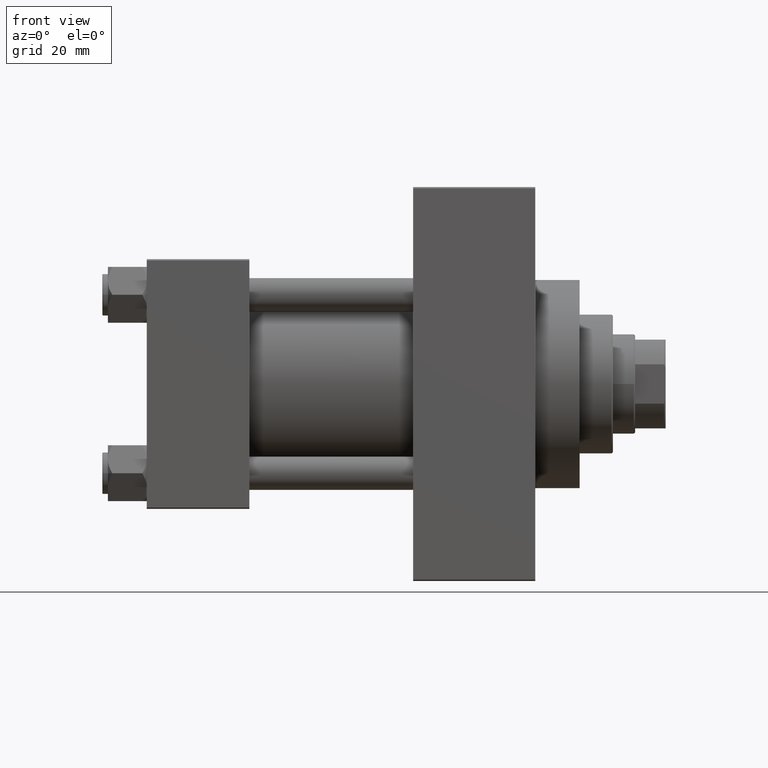
[diagram: clean part render]
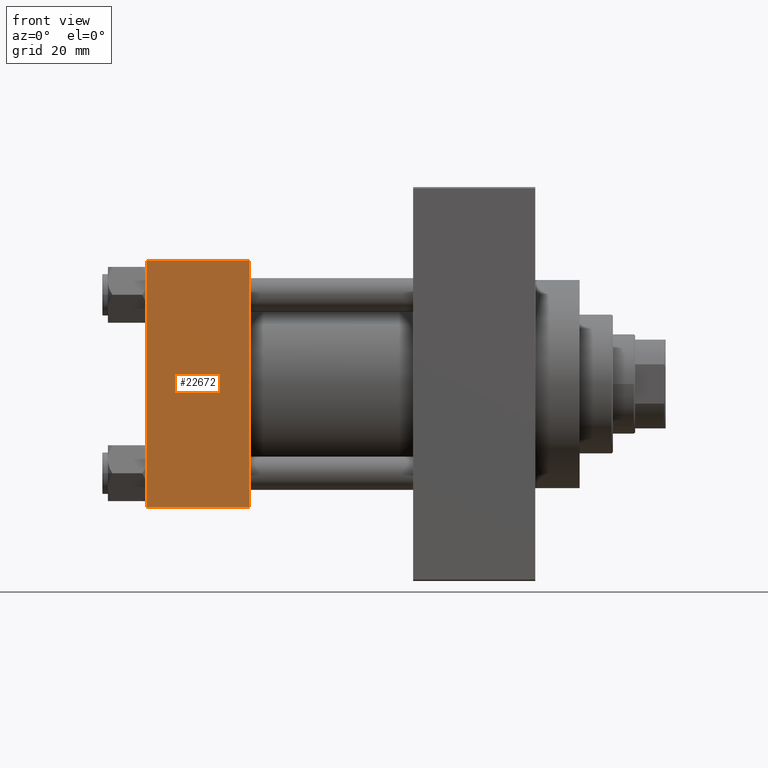
[diagram: same view with one face highlighted and labeled with its STEP entity id]
A machine part, front view. The second image highlights one B-rep face of the part: STEP entity #22672.
In plain terms, the highlighted planar face has unit normal (0, 1, 0).
Its self-contained STEP definition (entity closure, byte-faithful):
#4024 = VECTOR ( 'NONE', #41021, 1000.000000000000000 ) ;
#5343 = EDGE_CURVE ( 'NONE', #29326, #42338, #44608, .T. ) ;
#5544 = PLANE ( 'NONE',  #7960 ) ;
#5829 = VERTEX_POINT ( 'NONE', #13422 ) ;
#7960 = AXIS2_PLACEMENT_3D ( 'NONE', #13407, #13881, #42773 ) ;
#8335 = VECTOR ( 'NONE', #45162, 1000.000000000000000 ) ;
#9335 = CARTESIAN_POINT ( 'NONE',  ( 0.000000000000000000, -45.00000000000000711, 44.49999999999997158 ) ) ;
#12410 = CARTESIAN_POINT ( 'NONE',  ( 37.00000000000000000, -45.00000000000000000, -44.49999999999995737 ) ) ;
#12449 = CARTESIAN_POINT ( 'NONE',  ( 37.00000000000000000, -45.00000000000000000, -44.49999999999998579 ) ) ;
#13284 = CARTESIAN_POINT ( 'NONE',  ( 37.00000000000000000, -45.00000000000000711, 45.00000000000000000 ) ) ;
#13407 = CARTESIAN_POINT ( 'NONE',  ( 37.00000000000000000, -45.00000000000000711, 45.00000000000000000 ) ) ;
#13422 = CARTESIAN_POINT ( 'NONE',  ( 37.00000000000000000, -45.00000000000000711, 44.49999999999997158 ) ) ;
#13881 = DIRECTION ( 'NONE',  ( -0.000000000000000000, 1.000000000000000000, 7.709882115452478166E-17 ) ) ;
#14974 = VECTOR ( 'NONE', #27867, 1000.000000000000000 ) ;
#19659 = EDGE_CURVE ( 'NONE', #5829, #38549, #35257, .T. ) ;
#22672 = ADVANCED_FACE ( 'NONE', ( #35612 ), #5544, .F. ) ;
#23443 = LINE ( 'NONE', #12449, #8335 ) ;
#23756 = LINE ( 'NONE', #31395, #41184 ) ;
#26483 = CARTESIAN_POINT ( 'NONE',  ( 0.000000000000000000, -45.00000000000000711, 45.00000000000000000 ) ) ;
#27867 = DIRECTION ( 'NONE',  ( 0.000000000000000000, 7.709882115452476934E-17, -1.000000000000000000 ) ) ;
#29326 = VERTEX_POINT ( 'NONE', #9335 ) ;
#30879 = ORIENTED_EDGE ( 'NONE', *, *, #19659, .F. ) ;
#31395 = CARTESIAN_POINT ( 'NONE',  ( 37.00000000000000000, -45.00000000000000711, 44.49999999999997158 ) ) ;
#32614 = CARTESIAN_POINT ( 'NONE',  ( 0.000000000000000000, -45.00000000000000000, -44.49999999999995737 ) ) ;
#33505 = ORIENTED_EDGE ( 'NONE', *, *, #5343, .T. ) ;
#35257 = LINE ( 'NONE', #13284, #14974 ) ;
#35612 = FACE_OUTER_BOUND ( 'NONE', #35795, .T. ) ;
#35795 = EDGE_LOOP ( 'NONE', ( #33505, #42890, #30879, #37793 ) ) ;
#37782 = EDGE_CURVE ( 'NONE', #42338, #38549, #23443, .T. ) ;
#37793 = ORIENTED_EDGE ( 'NONE', *, *, #39992, .T. ) ;
#38549 = VERTEX_POINT ( 'NONE', #12410 ) ;
#39992 = EDGE_CURVE ( 'NONE', #5829, #29326, #23756, .T. ) ;
#41021 = DIRECTION ( 'NONE',  ( 0.000000000000000000, 7.709882115452476934E-17, -1.000000000000000000 ) ) ;
#41184 = VECTOR ( 'NONE', #45704, 1000.000000000000000 ) ;
#42338 = VERTEX_POINT ( 'NONE', #32614 ) ;
#42773 = DIRECTION ( 'NONE',  ( 0.000000000000000000, -7.709882115452478166E-17, 1.000000000000000000 ) ) ;
#42890 = ORIENTED_EDGE ( 'NONE', *, *, #37782, .T. ) ;
#44608 = LINE ( 'NONE', #26483, #4024 ) ;
#45162 = DIRECTION ( 'NONE',  ( 1.000000000000000000, 0.000000000000000000, 0.000000000000000000 ) ) ;
#45704 = DIRECTION ( 'NONE',  ( -1.000000000000000000, 0.000000000000000000, 0.000000000000000000 ) ) ;